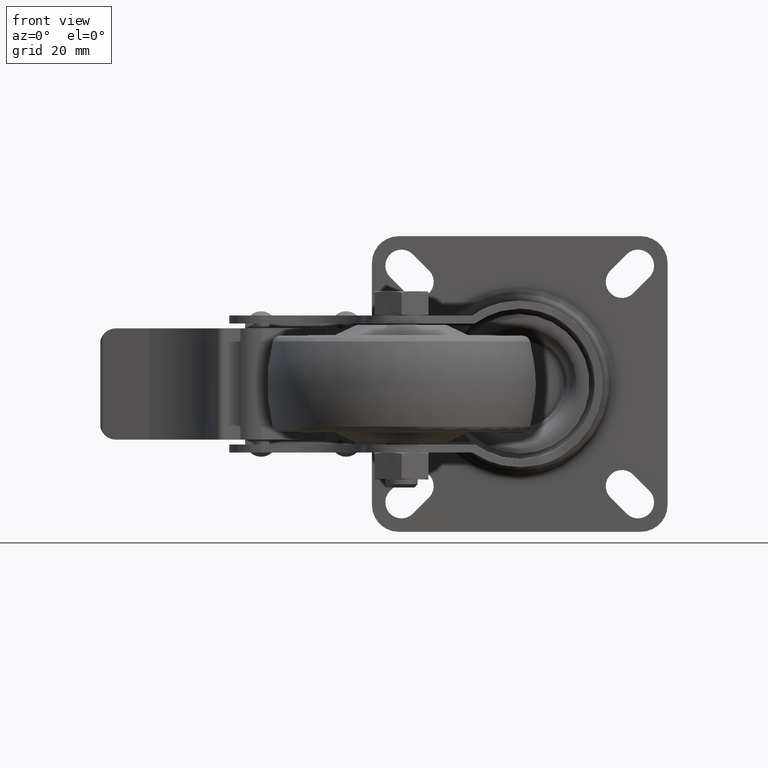
[diagram: clean part render]
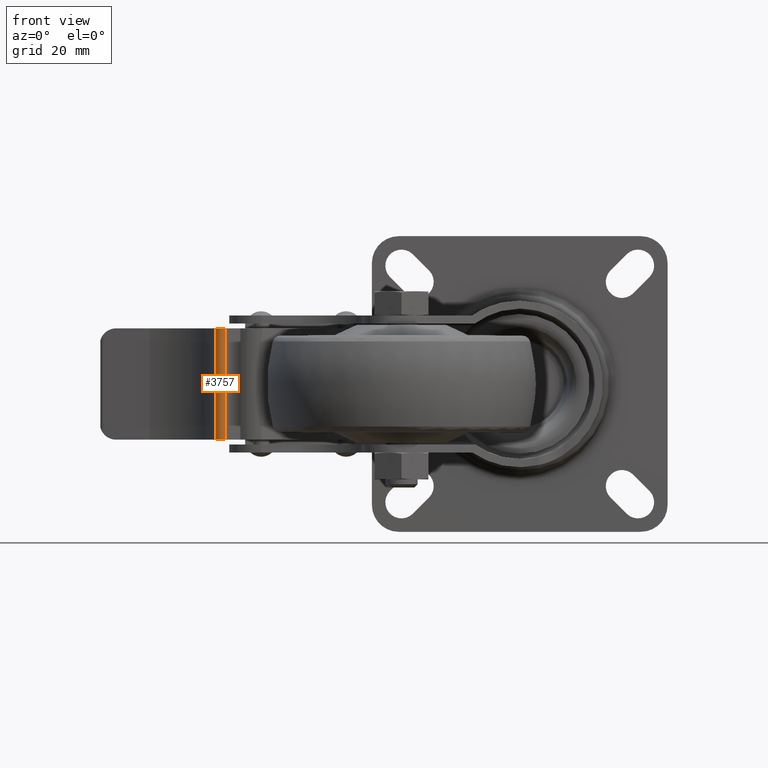
[diagram: same view with one face highlighted and labeled with its STEP entity id]
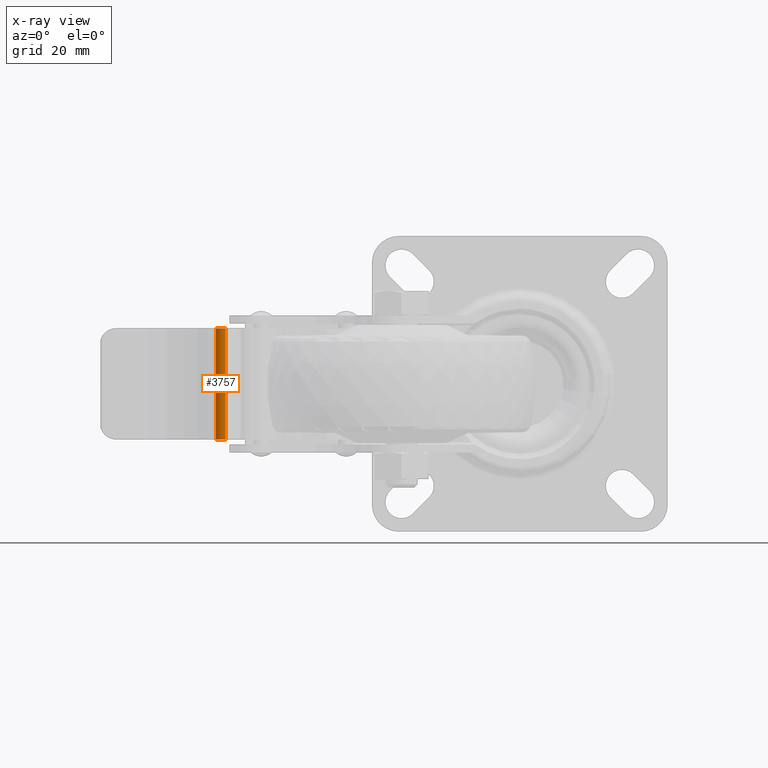
[diagram: x-ray of the same camera — body ghosted, the highlighted face saturated]
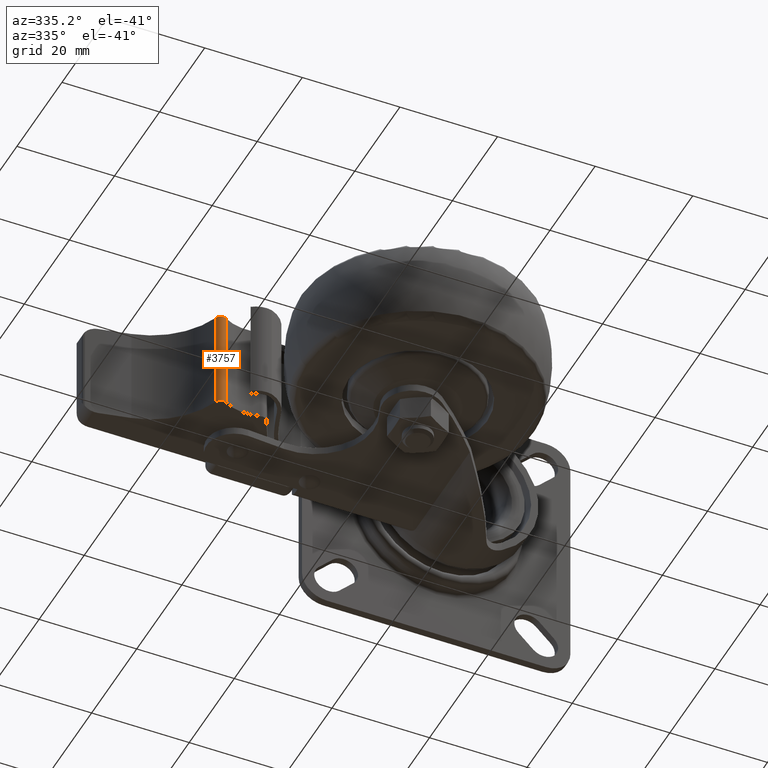
[diagram: same view with one face highlighted and labeled with its STEP entity id]
A machine part, front view. The second image highlights one B-rep face of the part: STEP entity #3757.
The next image is the same camera in x-ray: the body ghosted, the highlighted face saturated — about 0% of this face is hidden behind the body in this view.
A second angle (auxiliary view) of the same face is appended — the face is thin or edge-on in the first view.
In plain terms, the highlighted cylindrical surface (edge-blend (fillet) strip) has radius 1.1982 mm, axis along (0, 0, 1).
Its self-contained STEP definition (entity closure, byte-faithful):
#500=FACE_OUTER_BOUND('',#761,.T.);
#761=EDGE_LOOP('',(#3193,#3194,#3195,#3196));
#1048=LINE('',#6824,#1260);
#1049=LINE('',#6828,#1261);
#1260=VECTOR('',#5415,1000.);
#1261=VECTOR('',#5420,1000.);
#1454=CIRCLE('',#4354,1.1981514184);
#1480=CIRCLE('',#4401,1.1981514184);
#1773=VERTEX_POINT('',#6683);
#1774=VERTEX_POINT('',#6685);
#1822=VERTEX_POINT('',#6822);
#1823=VERTEX_POINT('',#6826);
#2230=EDGE_CURVE('',#1773,#1774,#1454,.T.);
#2300=EDGE_CURVE('',#1774,#1822,#1048,.T.);
#2301=EDGE_CURVE('',#1823,#1822,#1480,.T.);
#2302=EDGE_CURVE('',#1773,#1823,#1049,.T.);
#3193=ORIENTED_EDGE('',*,*,#2301,.T.);
#3194=ORIENTED_EDGE('',*,*,#2300,.F.);
#3195=ORIENTED_EDGE('',*,*,#2230,.F.);
#3196=ORIENTED_EDGE('',*,*,#2302,.T.);
#3589=CYLINDRICAL_SURFACE('',#4400,1.1981514184);
#3757=ADVANCED_FACE('',(#500),#3589,.T.);
#4354=AXIS2_PLACEMENT_3D('',#6686,#5279,#5280);
#4400=AXIS2_PLACEMENT_3D('',#6825,#5416,#5417);
#4401=AXIS2_PLACEMENT_3D('',#6827,#5418,#5419);
#5279=DIRECTION('center_axis',(0.,0.,1.));
#5280=DIRECTION('ref_axis',(1.,0.,0.));
#5415=DIRECTION('',(0.,0.,-1.));
#5416=DIRECTION('center_axis',(0.,0.,1.));
#5417=DIRECTION('ref_axis',(-1.,0.,0.));
#5418=DIRECTION('center_axis',(0.,0.,1.));
#5419=DIRECTION('ref_axis',(1.,0.,0.));
#5420=DIRECTION('',(0.,0.,-1.));
#6683=CARTESIAN_POINT('',(-8.40907870818704,-8.64458871800507,10.35));
#6685=CARTESIAN_POINT('',(-6.655763887914,-9.26537966453586,10.35));
#6686=CARTESIAN_POINT('Origin',(-7.28028205885009,-8.2428612659395,10.35));
#6822=CARTESIAN_POINT('',(-6.655763887914,-9.26537966453586,-10.35));
#6824=CARTESIAN_POINT('',(-6.655763887914,-9.26537966453586,10.35));
#6825=CARTESIAN_POINT('Origin',(-7.28028205885009,-8.2428612659395,10.35));
#6826=CARTESIAN_POINT('',(-8.40907870818704,-8.64458871800507,-10.35));
#6827=CARTESIAN_POINT('Origin',(-7.28028205885009,-8.2428612659395,-10.35));
#6828=CARTESIAN_POINT('',(-8.40907870818704,-8.64458871800507,10.35));